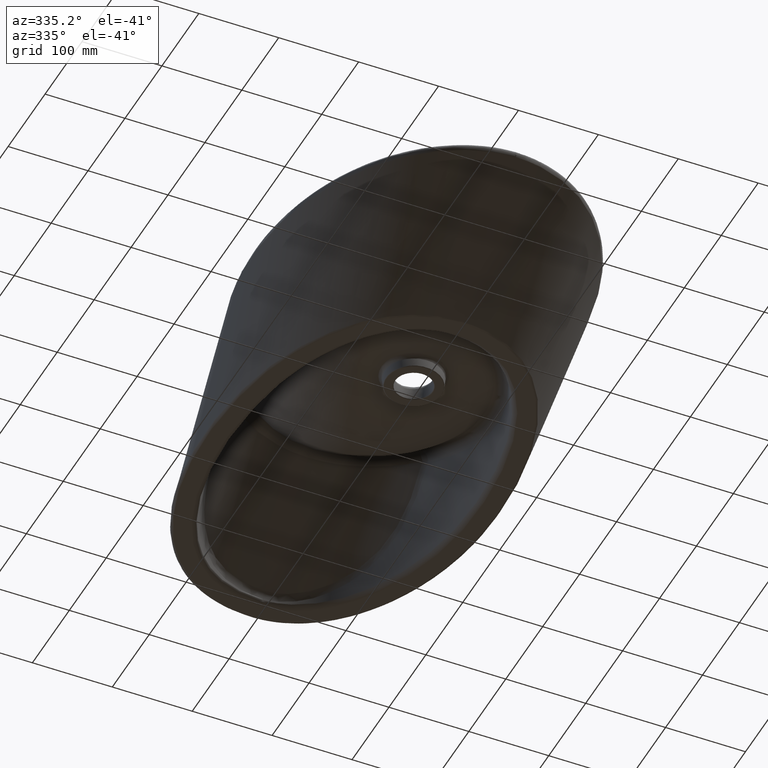
[diagram: clean part render]
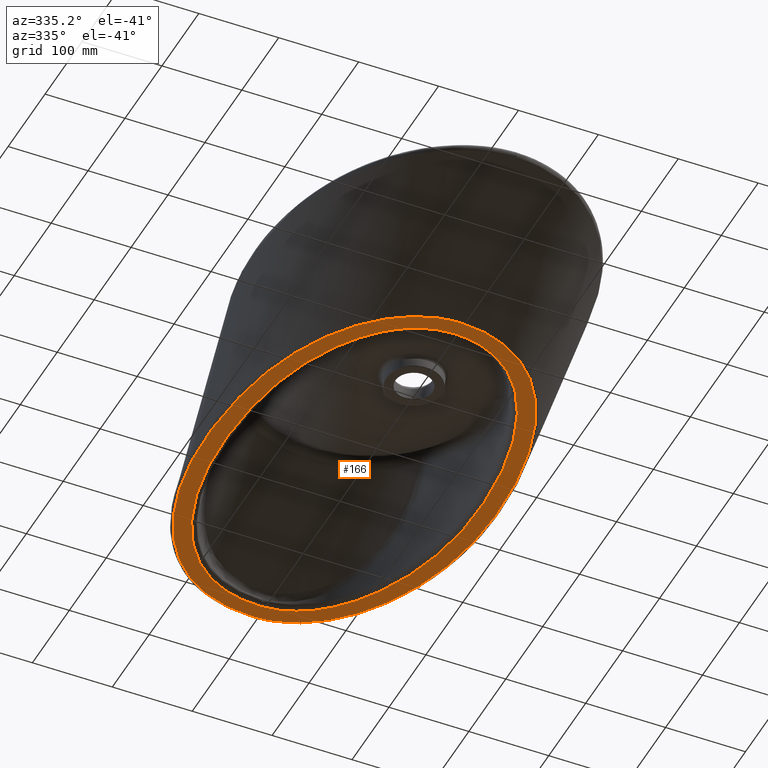
[diagram: same view with one face highlighted and labeled with its STEP entity id]
A machine part, auxiliary view. The second image highlights one B-rep face of the part: STEP entity #166.
In plain terms, the highlighted planar face has unit normal (0, 0, 1).
Its self-contained STEP definition (entity closure, byte-faithful):
#108=PLANE('',#536);
#166=ADVANCED_FACE('',(#216,#217),#108,.F.);
#216=FACE_BOUND('',#246,.T.);
#217=FACE_BOUND('',#247,.T.);
#246=EDGE_LOOP('',(#324,#325));
#247=EDGE_LOOP('',(#326,#327));
#324=ORIENTED_EDGE('',*,*,#460,.F.);
#325=ORIENTED_EDGE('',*,*,#461,.F.);
#326=ORIENTED_EDGE('',*,*,#462,.F.);
#327=ORIENTED_EDGE('',*,*,#463,.F.);
#414=VERTEX_POINT('',#14881);
#415=VERTEX_POINT('',#14882);
#416=VERTEX_POINT('',#14973);
#417=VERTEX_POINT('',#14974);
#460=EDGE_CURVE('',#414,#415,#518,.T.);
#461=EDGE_CURVE('',#415,#414,#519,.T.);
#462=EDGE_CURVE('',#416,#417,#520,.T.);
#463=EDGE_CURVE('',#417,#416,#521,.T.);
#518=B_SPLINE_CURVE_WITH_KNOTS('',3,(#14837,#14838,#14839,#14840,#14841,
#14842,#14843,#14844,#14845,#14846,#14847,#14848,#14849,#14850,#14851,#14852,
#14853,#14854,#14855,#14856,#14857,#14858,#14859,#14860,#14861,#14862,#14863,
#14864,#14865,#14866,#14867,#14868,#14869,#14870,#14871,#14872,#14873,#14874,
#14875,#14876,#14877,#14878,#14879,#14880),.UNSPECIFIED.,.F.,.F.,(4,2,2,
2,2,2,2,2,2,2,2,2,2,2,2,2,2,2,2,2,2,4),(0.,0.03125,0.0625,0.125,0.15625,
0.1875,0.25,0.28125,0.3125,0.375,0.4375,0.5,0.625,0.6875,0.75,0.78125,0.8125,
0.84375,0.875,0.90625,0.9375,1.),.UNSPECIFIED.);
#519=B_SPLINE_CURVE_WITH_KNOTS('',3,(#14883,#14884,#14885,#14886,#14887,
#14888,#14889,#14890,#14891,#14892,#14893,#14894,#14895,#14896,#14897,#14898,
#14899,#14900,#14901,#14902,#14903,#14904,#14905,#14906,#14907,#14908,#14909,
#14910,#14911,#14912,#14913,#14914,#14915,#14916,#14917,#14918,#14919,#14920,
#14921,#14922,#14923,#14924,#14925,#14926),.UNSPECIFIED.,.F.,.F.,(4,2,2,
2,2,2,2,2,2,2,2,2,2,2,2,2,2,2,2,2,2,4),(0.,0.03125,0.0625,0.09375,0.125,
0.1875,0.25,0.3125,0.375,0.4375,0.5,0.5625,0.625,0.6875,0.71875,0.75,0.8125,
0.875,0.90625,0.9375,0.96875,1.),.UNSPECIFIED.);
#520=B_SPLINE_CURVE_WITH_KNOTS('',3,(#14927,#14928,#14929,#14930,#14931,
#14932,#14933,#14934,#14935,#14936,#14937,#14938,#14939,#14940,#14941,#14942,
#14943,#14944,#14945,#14946,#14947,#14948,#14949,#14950,#14951,#14952,#14953,
#14954,#14955,#14956,#14957,#14958,#14959,#14960,#14961,#14962,#14963,#14964,
#14965,#14966,#14967,#14968,#14969,#14970,#14971,#14972),.UNSPECIFIED.,
 .F.,.F.,(4,2,2,2,2,2,2,2,2,2,2,2,2,2,2,2,2,2,2,2,2,2,4),(0.,0.0625000000000002,
0.0937500000000003,0.125,0.15625,0.187500000000001,0.218750000000001,0.250000000000001,
0.312500000000001,0.375000000000001,0.437500000000001,0.500000000000001,
0.562500000000001,0.625000000000001,0.687500000000001,0.750000000000001,
0.781250000000001,0.812500000000001,0.875000000000001,0.90625,0.9375,0.96875,
1.),.UNSPECIFIED.);
#521=B_SPLINE_CURVE_WITH_KNOTS('',3,(#14975,#14976,#14977,#14978,#14979,
#14980,#14981,#14982,#14983,#14984,#14985,#14986,#14987,#14988,#14989,#14990,
#14991,#14992,#14993,#14994,#14995,#14996,#14997,#14998,#14999,#15000,#15001,
#15002,#15003,#15004,#15005,#15006,#15007,#15008,#15009,#15010,#15011,#15012,
#15013,#15014,#15015,#15016,#15017,#15018,#15019,#15020,#15021,#15022),
 .UNSPECIFIED.,.F.,.F.,(4,2,2,2,2,2,2,2,2,2,2,2,2,2,2,2,2,2,2,2,2,2,2,4),
(0.,0.03125,0.0625,0.09375,0.125,0.15625,0.1875,0.25,0.28125,0.3125,0.375,
0.4375,0.500000000000001,0.562500000000001,0.625000000000001,0.687500000000001,
0.750000000000001,0.781250000000001,0.812500000000001,0.875,0.90625,0.9375,
0.96875,1.),.UNSPECIFIED.);
#536=AXIS2_PLACEMENT_3D('',#15023,#544,#545);
#544=DIRECTION('',(0.,0.,1.));
#545=DIRECTION('',(1.,0.,0.));
#14837=CARTESIAN_POINT('',(1.31032221685159,-105.357445368759,-143.));
#14838=CARTESIAN_POINT('',(-5.82929421682634,-105.472429726494,-143.));
#14839=CARTESIAN_POINT('',(-12.8498424779225,-104.72408847663,-143.));
#14840=CARTESIAN_POINT('',(-26.6807472903352,-101.703372462127,-143.));
#14841=CARTESIAN_POINT('',(-33.469440214113,-99.3967144531361,-143.));
#14842=CARTESIAN_POINT('',(-52.7194506947448,-90.7247983846527,-143.));
#14843=CARTESIAN_POINT('',(-64.5166955507686,-82.4539143808848,-143.));
#14844=CARTESIAN_POINT('',(-80.019092702438,-68.2173108527208,-143.));
#14845=CARTESIAN_POINT('',(-84.8694189730824,-63.1452775402753,-143.));
#14846=CARTESIAN_POINT('',(-94.0287877992869,-52.4439529426025,-143.));
#14847=CARTESIAN_POINT('',(-98.3478425655635,-46.789952310325,-143.));
#14848=CARTESIAN_POINT('',(-110.36384901073,-29.3860903244613,-143.));
#14849=CARTESIAN_POINT('',(-117.229935664947,-17.1342481309239,-143.));
#14850=CARTESIAN_POINT('',(-126.212861158059,1.99013455511651,-143.));
#14851=CARTESIAN_POINT('',(-128.989095144577,8.51525910216894,-143.));
#14852=CARTESIAN_POINT('',(-134.057068473688,21.6547336338296,-143.));
#14853=CARTESIAN_POINT('',(-136.354458066542,28.2769849246769,-143.));
#14854=CARTESIAN_POINT('',(-142.60189933334,48.2868396244533,-143.));
#14855=CARTESIAN_POINT('',(-145.902301332331,61.8186363618855,-143.));
#14856=CARTESIAN_POINT('',(-151.091301202853,89.1955875496548,-143.));
#14857=CARTESIAN_POINT('',(-152.999059726143,103.036489187654,-143.));
#14858=CARTESIAN_POINT('',(-155.891452818413,130.923184916806,-143.));
#14859=CARTESIAN_POINT('',(-156.832430397634,144.974321292101,-143.));
#14860=CARTESIAN_POINT('',(-157.948876858209,186.873783606152,-143.));
#14861=CARTESIAN_POINT('',(-156.47070642079,214.665291714003,-143.));
#14862=CARTESIAN_POINT('',(-149.966369997072,256.079668308967,-143.));
#14863=CARTESIAN_POINT('',(-147.043203217541,269.929226486016,-143.));
#14864=CARTESIAN_POINT('',(-139.452822731302,296.96545619964,-143.));
#14865=CARTESIAN_POINT('',(-134.788768340141,310.143902003878,-143.));
#14866=CARTESIAN_POINT('',(-126.111881765514,329.254485895439,-143.));
#14867=CARTESIAN_POINT('',(-122.93762623401,335.514452605367,-143.));
#14868=CARTESIAN_POINT('',(-115.924548311605,347.774583850151,-143.));
#14869=CARTESIAN_POINT('',(-112.09414130995,353.742682113122,-143.));
#14870=CARTESIAN_POINT('',(-103.806996500544,365.071927275471,-143.));
#14871=CARTESIAN_POINT('',(-99.3373689073619,370.465809566338,-143.));
#14872=CARTESIAN_POINT('',(-89.6368562803918,380.621463181128,-143.));
#14873=CARTESIAN_POINT('',(-84.3486443320847,385.422290163584,-143.));
#14874=CARTESIAN_POINT('',(-73.1564212977735,394.013944949164,-143.));
#14875=CARTESIAN_POINT('',(-67.2703210088759,397.80765046248,-143.));
#14876=CARTESIAN_POINT('',(-54.8821337764323,404.328467169255,-143.));
#14877=CARTESIAN_POINT('',(-48.3375055367311,407.083668370505,-143.));
#14878=CARTESIAN_POINT('',(-28.1059056192448,413.615259884577,-143.));
#14879=CARTESIAN_POINT('',(-14.2145404228572,415.488123686502,-143.));
#14880=CARTESIAN_POINT('',(-0.0198881840942047,415.496377618399,-143.));
#14881=CARTESIAN_POINT('',(1.31032193041453,-105.357427583289,-143.));
#14882=CARTESIAN_POINT('',(-0.0198881840941689,415.496377618399,-143.));
#14883=CARTESIAN_POINT('',(-0.0198881840941531,415.496377618371,-143.));
#14884=CARTESIAN_POINT('',(7.04553989192553,415.500465016767,-143.));
#14885=CARTESIAN_POINT('',(13.9735723706437,414.693301428051,-143.));
#14886=CARTESIAN_POINT('',(27.574176870785,411.570610429516,-143.));
#14887=CARTESIAN_POINT('',(34.2931917674023,409.223738800575,-143.));
#14888=CARTESIAN_POINT('',(46.9708030229051,403.416816072428,-143.));
#14889=CARTESIAN_POINT('',(52.9969063839358,399.944083632908,-143.));
#14890=CARTESIAN_POINT('',(64.520209336096,392.035755193403,-143.));
#14891=CARTESIAN_POINT('',(70.0159637600073,387.588691011025,-143.));
#14892=CARTESIAN_POINT('',(85.372863517537,373.441877315191,-143.));
#14893=CARTESIAN_POINT('',(94.3129786154931,362.817137840568,-143.));
#14894=CARTESIAN_POINT('',(110.2483031055,339.779038418751,-143.));
#14895=CARTESIAN_POINT('',(117.069038172838,327.656727541955,-143.));
#14896=CARTESIAN_POINT('',(128.873900841784,302.653239748401,-143.));
#14897=CARTESIAN_POINT('',(133.865315829274,289.736453612087,-143.));
#14898=CARTESIAN_POINT('',(142.278563281547,263.187808500735,-143.));
#14899=CARTESIAN_POINT('',(145.669397663637,249.627351890383,-143.));
#14900=CARTESIAN_POINT('',(150.92527438937,222.49135104746,-143.));
#14901=CARTESIAN_POINT('',(152.823797771313,208.841220366,-143.));
#14902=CARTESIAN_POINT('',(155.159275048265,181.376390019568,-143.));
#14903=CARTESIAN_POINT('',(155.605126363614,167.562692181354,-143.));
#14904=CARTESIAN_POINT('',(155.491057647883,139.822049225474,-143.));
#14905=CARTESIAN_POINT('',(154.924895310209,125.881417287472,-143.));
#14906=CARTESIAN_POINT('',(152.666104628989,98.3120182443284,-143.));
#14907=CARTESIAN_POINT('',(150.980258054142,84.6313483402996,-143.));
#14908=CARTESIAN_POINT('',(146.326938252532,57.5096110746192,-143.));
#14909=CARTESIAN_POINT('',(143.36684555876,44.0671639082747,-143.));
#14910=CARTESIAN_POINT('',(137.754556115484,24.1226289079216,-143.));
#14911=CARTESIAN_POINT('',(135.683914019476,17.5118183243506,-143.));
#14912=CARTESIAN_POINT('',(131.07094453352,4.3783796208461,-143.));
#14913=CARTESIAN_POINT('',(128.518734141508,-2.16440876520928,-143.));
#14914=CARTESIAN_POINT('',(120.148053966776,-21.3702605828719,-143.));
#14915=CARTESIAN_POINT('',(113.640147356598,-33.6923312709699,-143.));
#14916=CARTESIAN_POINT('',(97.8878506031878,-56.9148145515079,-143.));
#14917=CARTESIAN_POINT('',(88.8941857079386,-67.4909882382721,-143.));
#14918=CARTESIAN_POINT('',(73.0465767584235,-81.0658408179779,-143.));
#14919=CARTESIAN_POINT('',(67.3035286042674,-85.2412030878747,-143.));
#14920=CARTESIAN_POINT('',(55.3175461739299,-92.412600940119,-143.));
#14921=CARTESIAN_POINT('',(49.0604863755291,-95.4478001346677,-143.));
#14922=CARTESIAN_POINT('',(35.9829379360883,-100.343627043744,-143.));
#14923=CARTESIAN_POINT('',(29.1185156104205,-102.186110952849,-143.));
#14924=CARTESIAN_POINT('',(15.3358546516111,-104.632699551919,-143.));
#14925=CARTESIAN_POINT('',(8.3615265095095,-105.267569290237,-143.));
#14926=CARTESIAN_POINT('',(1.31032164397747,-105.35740979782,-143.));
#14927=CARTESIAN_POINT('',(0.000518433882858887,435.505088770152,-143.));
#14928=CARTESIAN_POINT('',(-15.5621692766479,435.505250143515,-143.));
#14929=CARTESIAN_POINT('',(-30.8019857031645,433.493223765088,-143.));
#14930=CARTESIAN_POINT('',(-53.0746679409747,426.816637929942,-143.));
#14931=CARTESIAN_POINT('',(-60.3533991097898,423.977758423142,-143.));
#14932=CARTESIAN_POINT('',(-74.1796354809044,417.25010983164,-143.));
#14933=CARTESIAN_POINT('',(-80.7930509678644,413.344401153449,-143.));
#14934=CARTESIAN_POINT('',(-93.4345829822124,404.474720502353,-143.));
#14935=CARTESIAN_POINT('',(-99.4770084402833,399.485353755615,-143.));
#14936=CARTESIAN_POINT('',(-110.65370591423,388.825809223969,-143.));
#14937=CARTESIAN_POINT('',(-115.840632874129,383.124403778285,-143.));
#14938=CARTESIAN_POINT('',(-125.506680646587,371.066311424165,-143.));
#14939=CARTESIAN_POINT('',(-130.001887323022,364.676794565409,-143.));
#14940=CARTESIAN_POINT('',(-138.187589534747,351.589637654378,-143.));
#14941=CARTESIAN_POINT('',(-141.902611694377,344.867750279126,-143.));
#14942=CARTESIAN_POINT('',(-152.087689658787,324.249040506592,-143.));
#14943=CARTESIAN_POINT('',(-157.607981223826,309.903995607351,-143.));
#14944=CARTESIAN_POINT('',(-166.642326948799,280.267101631992,-143.));
#14945=CARTESIAN_POINT('',(-170.05329422794,265.302950567718,-143.));
#14946=CARTESIAN_POINT('',(-175.172752629453,235.161572028928,-143.));
#14947=CARTESIAN_POINT('',(-176.875837595519,219.98145835528,-143.));
#14948=CARTESIAN_POINT('',(-178.830959746167,189.435879805464,-143.));
#14949=CARTESIAN_POINT('',(-179.079647544055,174.030341917542,-143.));
#14950=CARTESIAN_POINT('',(-178.253849839604,143.22861551913,-143.));
#14951=CARTESIAN_POINT('',(-177.184039093211,127.927950540337,-143.));
#14952=CARTESIAN_POINT('',(-173.853651573909,97.5082471263473,-143.));
#14953=CARTESIAN_POINT('',(-171.697863280939,82.3732253921686,-143.));
#14954=CARTESIAN_POINT('',(-165.599696955203,52.3756889588104,-143.));
#14955=CARTESIAN_POINT('',(-161.667508975228,37.4842675524403,-143.));
#14956=CARTESIAN_POINT('',(-151.822565967197,8.11738261052329,-143.));
#14957=CARTESIAN_POINT('',(-145.972219682894,-6.12973354487952,-143.));
#14958=CARTESIAN_POINT('',(-135.583822872668,-26.7419640081399,-143.));
#14959=CARTESIAN_POINT('',(-131.850860411229,-33.4856650782815,-143.));
#14960=CARTESIAN_POINT('',(-123.758107963622,-46.6783061687291,-143.));
#14961=CARTESIAN_POINT('',(-119.399873991287,-53.1203318249119,-143.));
#14962=CARTESIAN_POINT('',(-105.516604709903,-71.5965068648034,-143.));
#14963=CARTESIAN_POINT('',(-95.1369548566145,-82.915091438424,-143.));
#14964=CARTESIAN_POINT('',(-77.2279112911556,-97.8141163113039,-143.));
#14965=CARTESIAN_POINT('',(-70.9160551797192,-102.376231611005,-143.));
#14966=CARTESIAN_POINT('',(-57.753471798423,-110.394817423634,-143.));
#14967=CARTESIAN_POINT('',(-50.8743988229892,-113.885015143548,-143.));
#14968=CARTESIAN_POINT('',(-36.4129655733365,-119.639433431326,-143.));
#14969=CARTESIAN_POINT('',(-28.9452819220747,-121.835962791421,-143.));
#14970=CARTESIAN_POINT('',(-13.8479583217004,-124.709138240564,-143.));
#14971=CARTESIAN_POINT('',(-6.17052728590995,-125.411894316459,-143.));
#14972=CARTESIAN_POINT('',(1.64934458675244,-125.302906860019,-143.));
#14973=CARTESIAN_POINT('',(0.000518433882858887,435.505088770152,-143.));
#14974=CARTESIAN_POINT('',(1.64934458675246,-125.302906860019,-143.));
#14975=CARTESIAN_POINT('',(1.64934458681025,-125.302906864165,-143.));
#14976=CARTESIAN_POINT('',(9.38577054929892,-125.195588073478,-143.));
#14977=CARTESIAN_POINT('',(17.1289493330819,-124.532274264426,-143.));
#14978=CARTESIAN_POINT('',(32.2978355948786,-122.000419820112,-143.));
#14979=CARTESIAN_POINT('',(39.6875562329707,-120.145420347516,-143.));
#14980=CARTESIAN_POINT('',(54.0669516562761,-115.225207279454,-143.));
#14981=CARTESIAN_POINT('',(61.0566578635103,-112.160088741525,-143.));
#14982=CARTESIAN_POINT('',(74.6203481636472,-104.772213896566,-143.));
#14983=CARTESIAN_POINT('',(81.0389572165014,-100.527789530316,-143.));
#14984=CARTESIAN_POINT('',(93.0398594243414,-91.1979585972034,-143.));
#14985=CARTESIAN_POINT('',(98.6580502265572,-86.0926981204253,-143.));
#14986=CARTESIAN_POINT('',(109.216571377732,-75.1013153643545,-143.));
#14987=CARTESIAN_POINT('',(114.184715073508,-69.1744680826911,-143.));
#14988=CARTESIAN_POINT('',(127.924165224239,-50.6727558708548,-143.));
#14989=CARTESIAN_POINT('',(135.562334046924,-37.4310642178866,-143.));
#14990=CARTESIAN_POINT('',(145.373914543624,-16.5872472411266,-143.));
#14991=CARTESIAN_POINT('',(148.355066760898,-9.48804863371501,-143.));
#14992=CARTESIAN_POINT('',(153.746323200328,4.76741679257637,-143.));
#14993=CARTESIAN_POINT('',(156.170662990577,11.9540219065729,-143.));
#14994=CARTESIAN_POINT('',(162.746780955063,33.6650720764675,-143.));
#14995=CARTESIAN_POINT('',(166.20888566987,48.3391834208973,-143.));
#14996=CARTESIAN_POINT('',(171.656432650252,78.0078571654973,-143.));
#14997=CARTESIAN_POINT('',(173.637903073327,93.0032814966545,-143.));
#14998=CARTESIAN_POINT('',(176.295703602715,123.277359134293,-143.));
#14999=CARTESIAN_POINT('',(176.960941086371,138.589414881075,-143.));
#15000=CARTESIAN_POINT('',(177.09273193994,168.977879199074,-143.));
#15001=CARTESIAN_POINT('',(176.590966785752,184.118465164112,-143.));
#15002=CARTESIAN_POINT('',(173.841803216993,214.234667773413,-143.));
#15003=CARTESIAN_POINT('',(171.663346862896,229.216799717968,-143.));
#15004=CARTESIAN_POINT('',(165.544392946481,259.014543669648,-143.));
#15005=CARTESIAN_POINT('',(161.57588229064,273.908377356502,-143.));
#15006=CARTESIAN_POINT('',(151.836237483819,302.76278471076,-143.));
#15007=CARTESIAN_POINT('',(146.054210217786,316.791505905834,-143.));
#15008=CARTESIAN_POINT('',(135.785746072448,337.137651910048,-143.));
#15009=CARTESIAN_POINT('',(132.092962044757,343.80177160228,-143.));
#15010=CARTESIAN_POINT('',(124.081604517239,356.856644605661,-143.));
#15011=CARTESIAN_POINT('',(119.758713799459,363.251261645019,-143.));
#15012=CARTESIAN_POINT('',(106.001698950783,381.582469448595,-143.));
#15013=CARTESIAN_POINT('',(95.7179505107066,392.805517085872,-143.));
#15014=CARTESIAN_POINT('',(78.0233877306957,407.604991839724,-143.));
#15015=CARTESIAN_POINT('',(71.7730188809153,412.15831181352,-143.));
#15016=CARTESIAN_POINT('',(58.7464767223392,420.170787298169,-143.));
#15017=CARTESIAN_POINT('',(51.9379688506925,423.667181996204,-143.));
#15018=CARTESIAN_POINT('',(37.6337325075979,429.473213333084,-143.));
#15019=CARTESIAN_POINT('',(30.2731781451139,431.71262108971,-143.));
#15020=CARTESIAN_POINT('',(15.3478622379837,434.71832602434,-143.));
#15021=CARTESIAN_POINT('',(7.7490091149781,435.505090267302,-143.));
#15022=CARTESIAN_POINT('',(0.000518433882668597,435.505088770265,-143.));
#15023=CARTESIAN_POINT('',(-280.000000154518,485.000000000001,-143.));